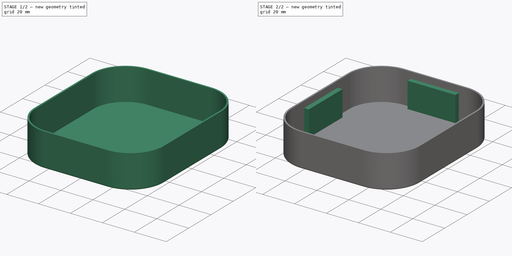
[diagram: build sequence overview — one tinted view per stage of 2, left to right]
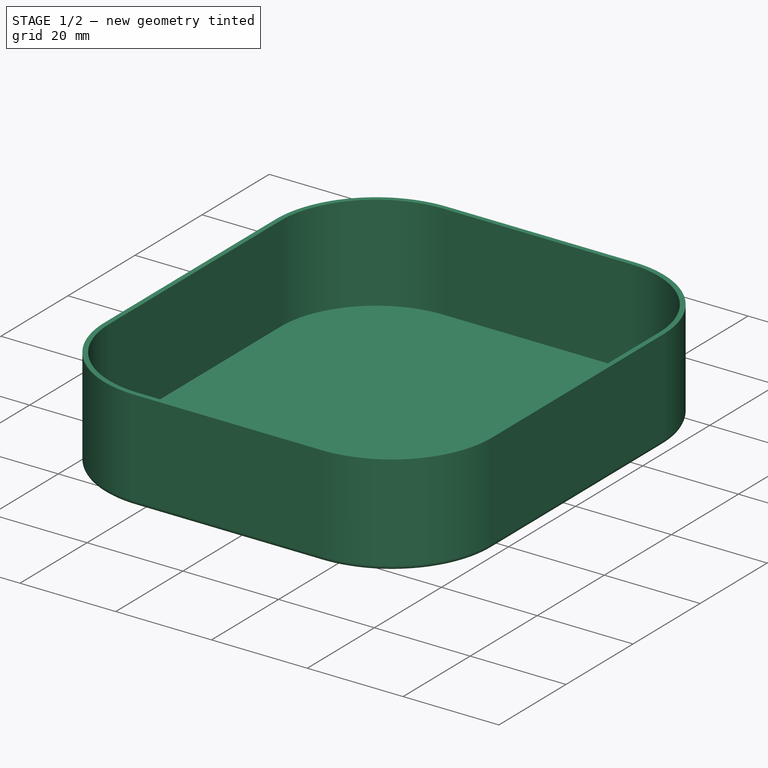
[diagram: stage 1 of 2 — iso view after this stage's code; geometry added in this stage tinted green]
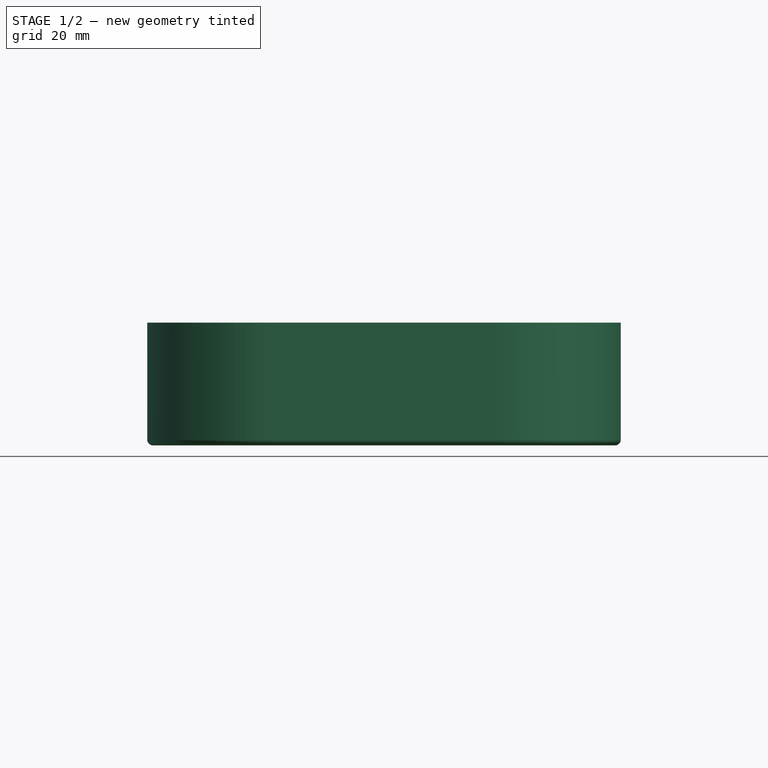
[diagram: stage 1 of 2 — front view after this stage's code; geometry added in this stage tinted green]
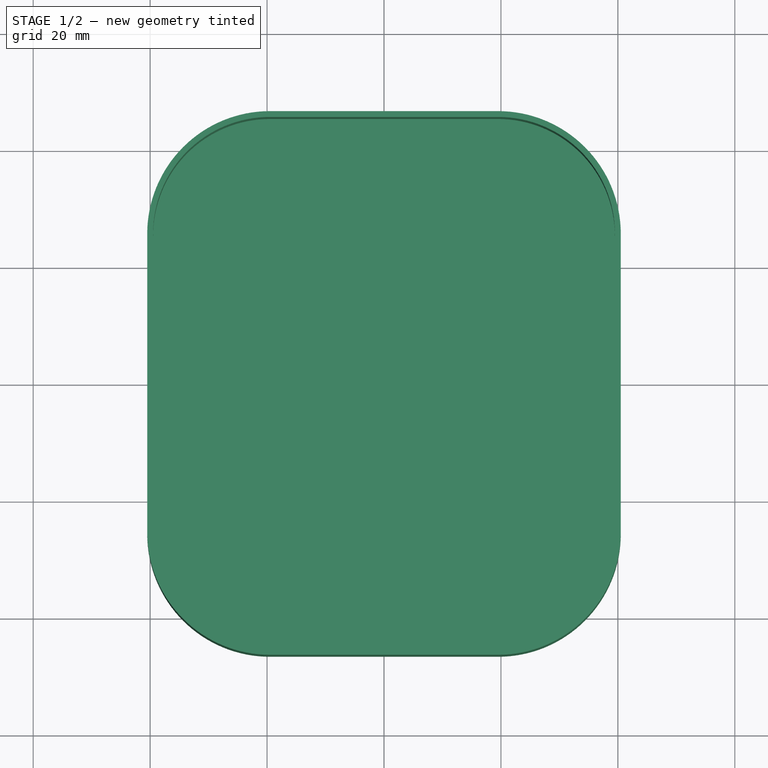
[diagram: stage 1 of 2 — top view after this stage's code; geometry added in this stage tinted green]
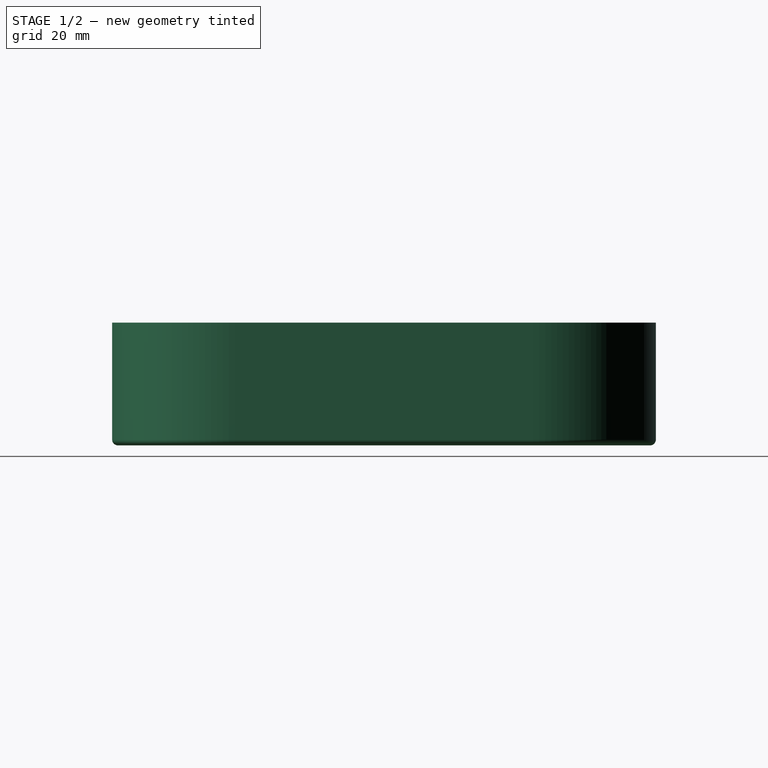
[diagram: stage 1 of 2 — right view after this stage's code; geometry added in this stage tinted green]
FCSTD DOCUMENT  (FreeCAD 0.20R29177 +426 (Git))
Label: 置物桶防尘盖
License: All rights reserved
LicenseURL: http://en.wikipedia.org/wiki/All_rights_reserved
objects: PartDesign::Pad×3, Sketcher::SketchObject×2, PartDesign::Thickness×1, PartDesign::Body×1
note: 11 computed .brp shape members not serialized (recipe doc carries the construction recipe); baked Part::Feature solids carry a one-line shape summary decoded from their .brp

FEATURE [Sketcher::SketchObject] Sketch
  FullyConstrained = true
  MapMode = 5
  Support = -> [XY_Plane]
  sketch-geometry (8):
    g0: LineSegment StartX=-19.5 StartY=45.5 StartZ=0 EndX=19.5 EndY=45.5 EndZ=0
    g1: LineSegment StartX=39.5 StartY=25.5 StartZ=0 EndX=39.5 EndY=-25.5 EndZ=0
    g2: LineSegment StartX=19.5 StartY=-45.5 StartZ=0 EndX=-19.5 EndY=-45.5 EndZ=0
    g3: LineSegment StartX=-39.5 StartY=-25.5 StartZ=0 EndX=-39.5 EndY=25.5 EndZ=0
    g4: ArcOfCircle CenterX=19.5 CenterY=25.5 CenterZ=0 NormalX=0 NormalY=0 NormalZ=1 AngleXU=0 Radius=20 StartAngle=0 EndAngle=1.5708
    g5: ArcOfCircle CenterX=19.5 CenterY=-25.5 CenterZ=0 NormalX=0 NormalY=0 NormalZ=1 AngleXU=0 Radius=20 StartAngle=4.71239 EndAngle=6.28319
    g6: ArcOfCircle CenterX=-19.5 CenterY=-25.5 CenterZ=0 NormalX=0 NormalY=0 NormalZ=1 AngleXU=0 Radius=20 StartAngle=3.14159 EndAngle=4.71239
    g7: ArcOfCircle CenterX=-19.5 CenterY=25.5 CenterZ=0 NormalX=0 NormalY=0 NormalZ=1 AngleXU=0 Radius=20 StartAngle=1.5708 EndAngle=3.14159
  constraints (19):
    c: Horizontal(g0)
    c: Horizontal(g2)
    c: Vertical(g1)
    c: Vertical(g3)
    c: Tangent(g0,g4) = 1.5708
    c: Tangent(g1,g4) = 1.5708
    c: Tangent(g2,g5) = 1.5708
    c: Tangent(g1,g5) = 1.5708
    c: Tangent(g3,g6) = 1.5708
    c: Tangent(g2,g6) = 1.5708
    c: Tangent(g0,g7) = 1.5708
    c: Tangent(g3,g7) = 1.5708
    c: Radius(g7) = 20
    c: Radius(g4) = 20
    c: Radius(g6) = 20
    c: Radius(g5) = 20
    c: Distance(g0,g2) = 91
    c: Symmetric(g6,g4,g-1)
    c: Distance(g3,g1) = 79
FEATURE [PartDesign::Pad] Pad
  Direction = (0,0,1)
  Length = 20
  Length2 = 10
  Profile = -> Sketch
  ReferenceAxis = -> Sketch [N_Axis]
  Type = 0
FEATURE [PartDesign::Thickness] Thickness
  Base = -> Pad [Face10]
  BaseFeature = -> Pad
  Intersection = false
  Join = 0
  Mode = 0
  SupportTransform = false
  Value = 1
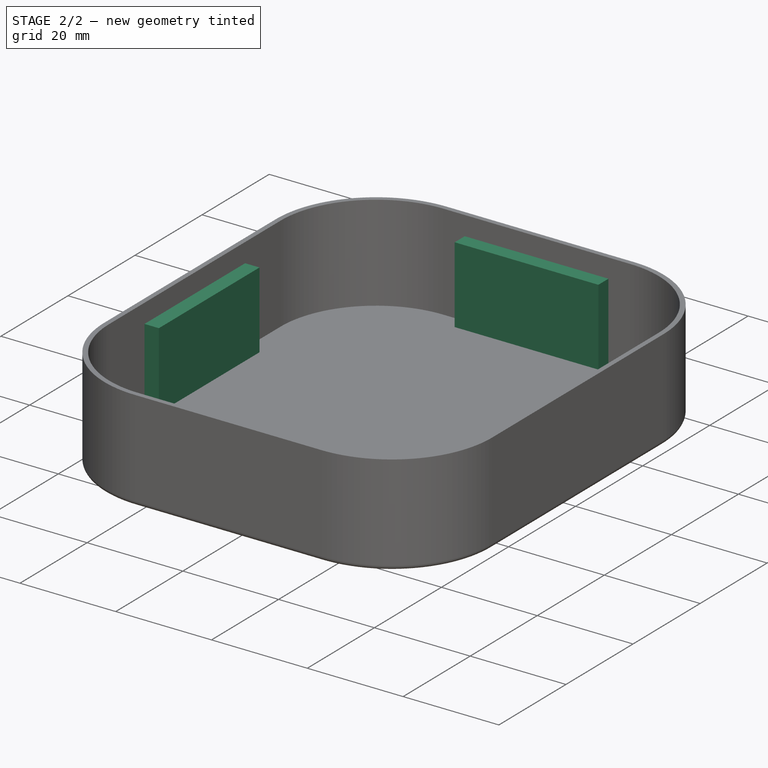
[diagram: stage 2 of 2 — iso view after this stage's code; geometry added in this stage tinted green]
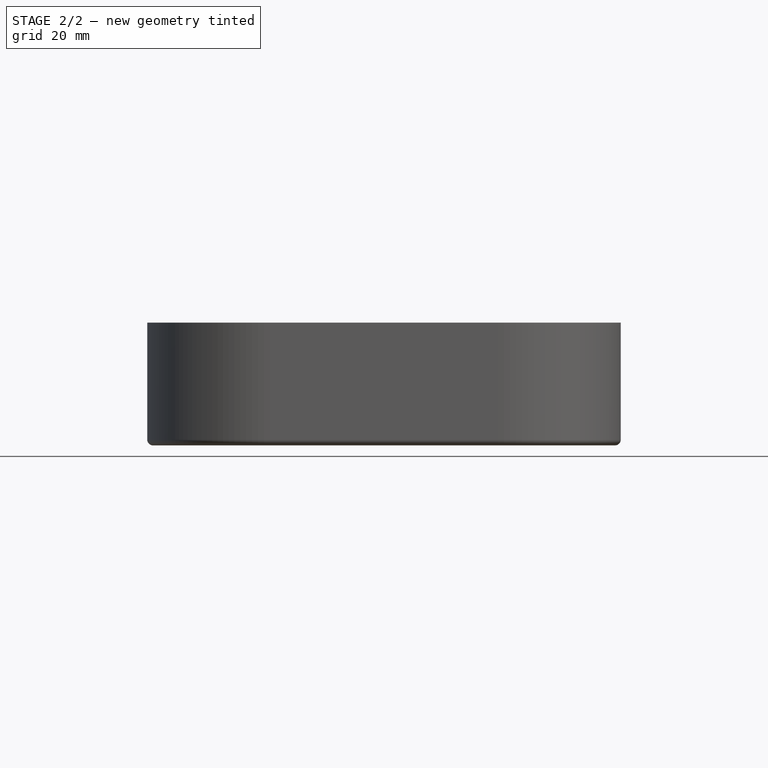
[diagram: stage 2 of 2 — front view after this stage's code; geometry added in this stage tinted green]
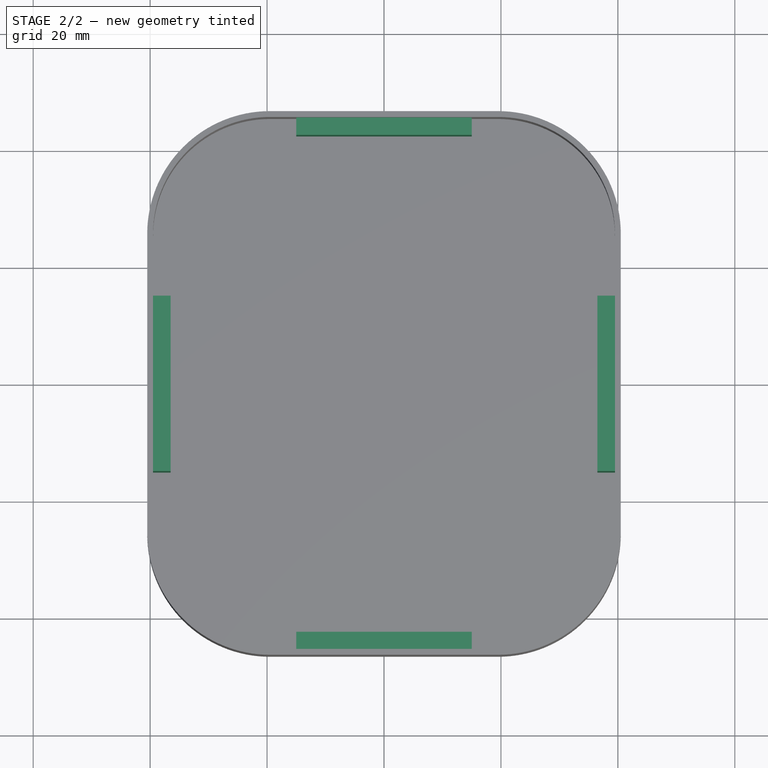
[diagram: stage 2 of 2 — top view after this stage's code; geometry added in this stage tinted green]
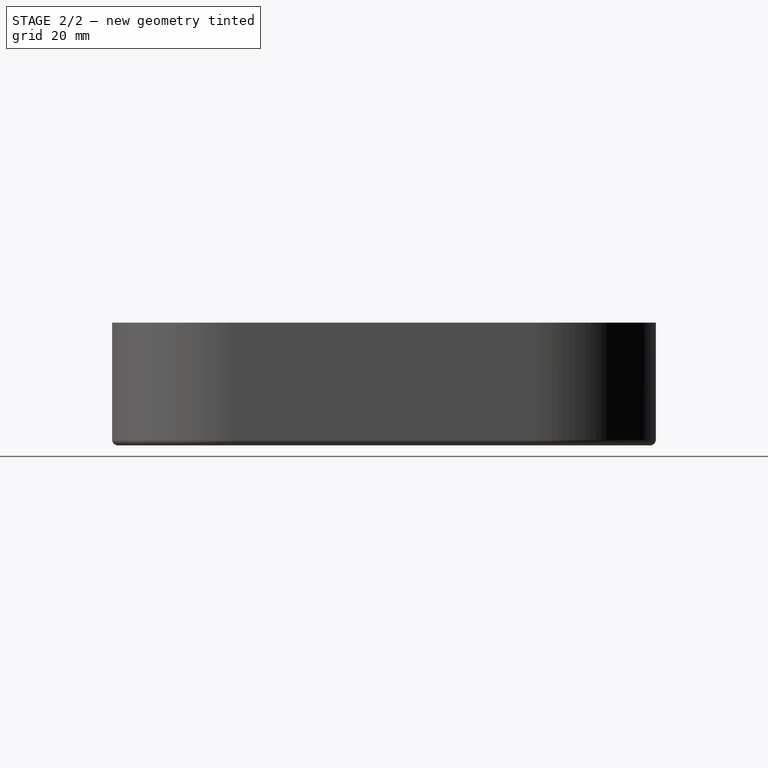
[diagram: stage 2 of 2 — right view after this stage's code; geometry added in this stage tinted green]
FEATURE [Sketcher::SketchObject] Sketch001
  ExternalGeometry = -> [Thickness]
  FullyConstrained = true
  MapMode = 5
  Support = -> [Thickness]
  sketch-geometry (16):
    g0: LineSegment StartX=-39.5 StartY=15 StartZ=0 EndX=-36.5 EndY=15 EndZ=0
    g1: LineSegment StartX=-36.5 StartY=15 StartZ=0 EndX=-36.5 EndY=-15 EndZ=0
    g2: LineSegment StartX=-36.5 StartY=-15 StartZ=0 EndX=-39.5 EndY=-15 EndZ=0
    g3: LineSegment StartX=-39.5 StartY=-15 StartZ=0 EndX=-39.5 EndY=15 EndZ=0
    g4: LineSegment StartX=36.5 StartY=15 StartZ=0 EndX=39.5 EndY=15 EndZ=0
    g5: LineSegment StartX=39.5 StartY=15 StartZ=0 EndX=39.5 EndY=-15 EndZ=0
    g6: LineSegment StartX=39.5 StartY=-15 StartZ=0 EndX=36.5 EndY=-15 EndZ=0
    g7: LineSegment StartX=36.5 StartY=-15 StartZ=0 EndX=36.5 EndY=15 EndZ=0
    g8: LineSegment StartX=-15 StartY=-42.5 StartZ=0 EndX=15 EndY=-42.5 EndZ=0
    g9: LineSegment StartX=15 StartY=-42.5 StartZ=0 EndX=15 EndY=-45.5 EndZ=0
    g10: LineSegment StartX=15 StartY=-45.5 StartZ=0 EndX=-15 EndY=-45.5 EndZ=0
    g11: LineSegment StartX=-15 StartY=-45.5 StartZ=0 EndX=-15 EndY=-42.5 EndZ=0
    g12: LineSegment StartX=-15 StartY=45.5 StartZ=0 EndX=15 EndY=45.5 EndZ=0
    g13: LineSegment StartX=15 StartY=45.5 StartZ=0 EndX=15 EndY=42.5 EndZ=0
    g14: LineSegment StartX=15 StartY=42.5 StartZ=0 EndX=-15 EndY=42.5 EndZ=0
    g15: LineSegment StartX=-15 StartY=42.5 StartZ=0 EndX=-15 EndY=45.5 EndZ=0
  constraints (44):
    c: Coincident(g0,g1)
    c: Coincident(g1,g2)
    c: Coincident(g2,g3)
    c: Coincident(g3,g0)
    c: Horizontal(g0)
    c: Horizontal(g2)
    c: Vertical(g3)
    c: Coincident(g4,g5)
    c: Coincident(g5,g6)
    c: Coincident(g6,g7)
    c: Coincident(g7,g4)
    c: Horizontal(g4)
    c: Horizontal(g6)
    c: Vertical(g5)
    c: Coincident(g8,g9)
    c: Coincident(g9,g10)
    c: Coincident(g10,g11)
    c: Coincident(g11,g8)
    c: Horizontal(g10)
    c: Vertical(g9)
    c: Vertical(g11)
    c: Coincident(g12,g13)
    c: Coincident(g13,g14)
    c: Coincident(g14,g15)
    c: Coincident(g15,g12)
    c: Horizontal(g12)
    c: Vertical(g13)
    c: Vertical(g15)
    c: DistanceX(g14,g14) = 30
    c: DistanceY(g1,g1) = 30
    c: DistanceY(g5,g5) = 30
    c: DistanceX(g8,g8) = 30
    c: PointOnObject(g0,g-5)
    c: PointOnObject(g12,g-6)
    c: PointOnObject(g4,g-3)
    c: PointOnObject(g10,g-4)
    c: Distance(g8,g10) = 3
    c: Distance(g4,g5) = 3
    c: Distance(g0,g3) = 3
    c: Distance(g14,g12) = 3
    c: Symmetric(g0,g1,g-1)
    c: Symmetric(g4,g6,g-1)
    c: Symmetric(g8,g8,g-2)
    c: Symmetric(g14,g13,g-2)
FEATURE [PartDesign::Pad] Pad001
  BaseFeature = -> Thickness
  Direction = (0,0,1)
  Length = 16
  Length2 = 10
  Profile = -> Sketch001
  ReferenceAxis = -> Sketch001 [N_Axis]
  Type = 0
FEATURE [PartDesign::Pad] Pad002
  BaseFeature = -> Pad001
  Direction = (0,0,1)
  Length = 16
  Length2 = 10
  Profile = -> Sketch001
  ReferenceAxis = -> Sketch001 [N_Axis]
  Type = 0
FEATURE [PartDesign::Body] Body
  Group = -> [Sketch,Pad,Thickness,Sketch001,Pad001,Pad002]
  Origin = -> Origin
  Tip = -> Pad002
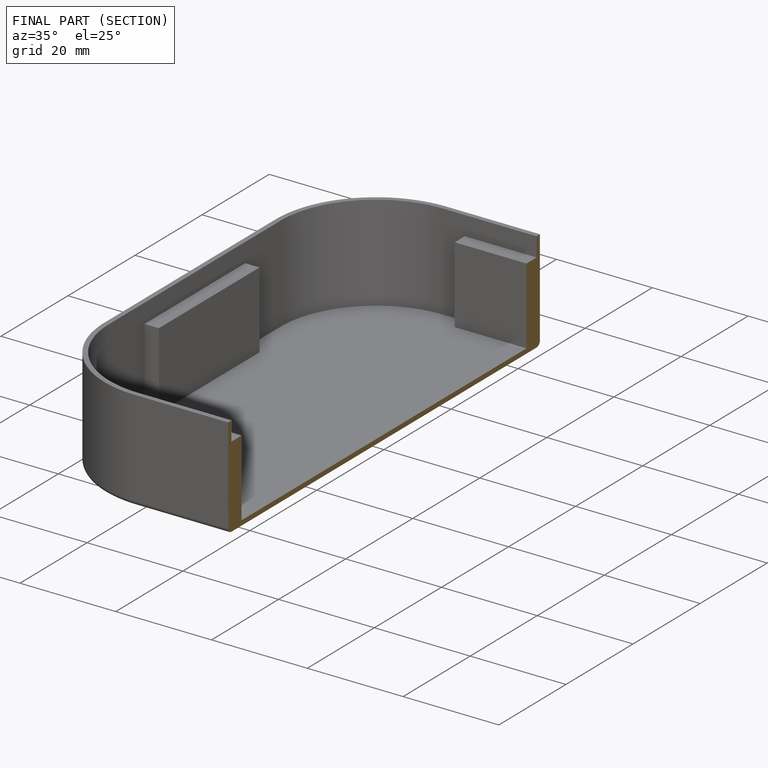
[diagram: finished part — half-section view (interior)]
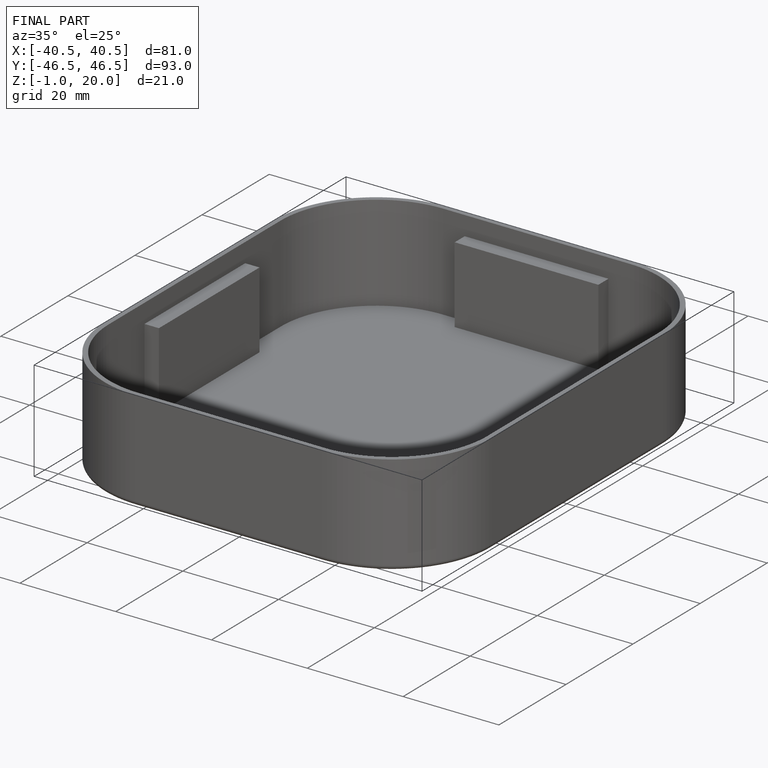
[diagram: finished part — iso view with bounding-box wireframe]
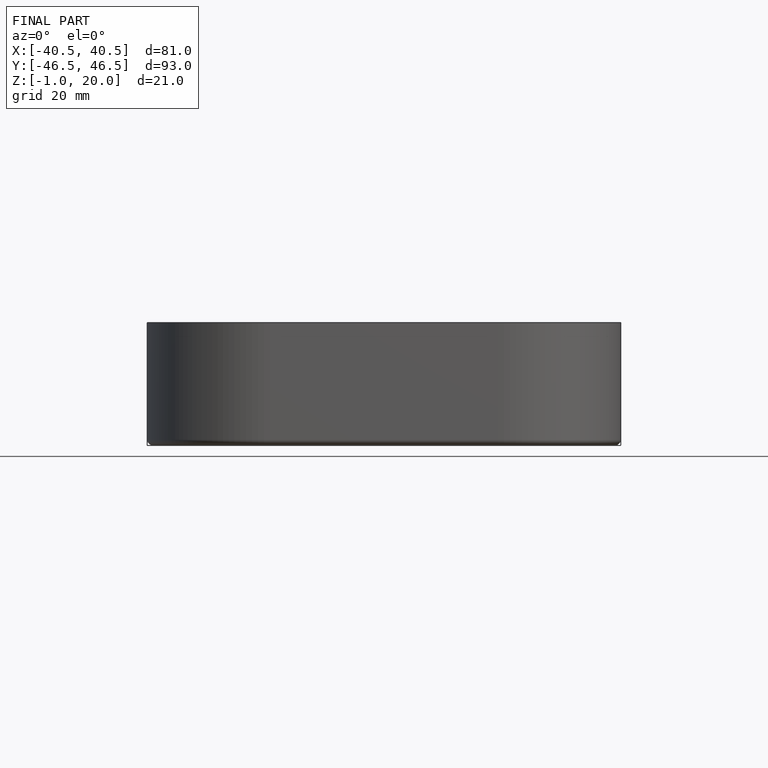
[diagram: finished part — front view with bounding-box wireframe]
